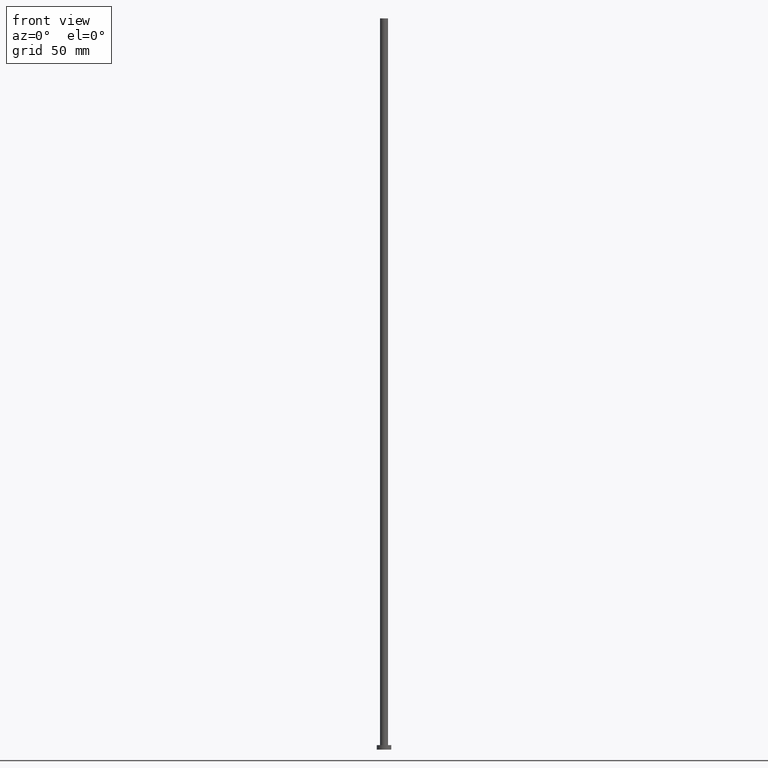
[diagram: clean part render]
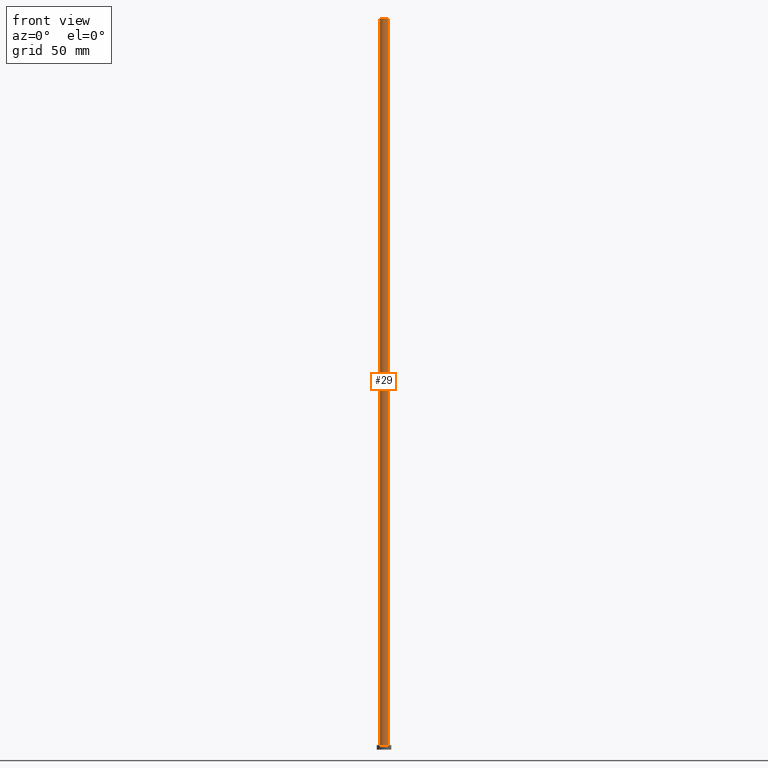
[diagram: same view with one face highlighted and labeled with its STEP entity id]
A machine part, front view. The second image highlights one B-rep face of the part: STEP entity #29.
In plain terms, the highlighted cylindrical surface (edge-blend (fillet) strip) has radius 2.75 mm, axis along (-0, -0, -1).
Its self-contained STEP definition (entity closure, byte-faithful):
#2 = DIRECTION ( 'NONE',  ( 1.000000000000000000, 0.000000000000000000, 0.000000000000000000 ) ) ;
#6 = CIRCLE ( 'NONE', #191, 2.750000000000000000 ) ;
#9 = ORIENTED_EDGE ( 'NONE', *, *, #138, .T. ) ;
#14 = VERTEX_POINT ( 'NONE', #114 ) ;
#17 = DIRECTION ( 'NONE',  ( -1.000000000000000000, 0.000000000000000000, 0.000000000000000000 ) ) ;
#24 = VECTOR ( 'NONE', #28, 1000.000000000000000 ) ;
#25 = CARTESIAN_POINT ( 'NONE',  ( -2.750000000000000000, 0.000000000000000000, 500.0000000000000000 ) ) ;
#28 = DIRECTION ( 'NONE',  ( -0.000000000000000000, -0.000000000000000000, -1.000000000000000000 ) ) ;
#29 = ADVANCED_FACE ( 'NONE', ( #248 ), #193, .T. ) ;
#33 = CARTESIAN_POINT ( 'NONE',  ( 2.750000000000000000, 3.367778697655220519E-16, 500.0000000000000000 ) ) ;
#35 = CARTESIAN_POINT ( 'NONE',  ( 2.750000000000000000, 3.367778697655220519E-16, 3.000000000000000000 ) ) ;
#42 = CARTESIAN_POINT ( 'NONE',  ( 0.000000000000000000, 0.000000000000000000, 3.000000000000000000 ) ) ;
#44 = EDGE_CURVE ( 'NONE', #209, #47, #215, .T. ) ;
#47 = VERTEX_POINT ( 'NONE', #35 ) ;
#49 = ORIENTED_EDGE ( 'NONE', *, *, #44, .F. ) ;
#50 = ORIENTED_EDGE ( 'NONE', *, *, #157, .F. ) ;
#67 = DIRECTION ( 'NONE',  ( 1.000000000000000000, 0.000000000000000000, 0.000000000000000000 ) ) ;
#79 = CIRCLE ( 'NONE', #99, 2.750000000000000000 ) ;
#86 = DIRECTION ( 'NONE',  ( 0.000000000000000000, 0.000000000000000000, 1.000000000000000000 ) ) ;
#97 = DIRECTION ( 'NONE',  ( -0.000000000000000000, -0.000000000000000000, -1.000000000000000000 ) ) ;
#99 = AXIS2_PLACEMENT_3D ( 'NONE', #119, #86, #67 ) ;
#114 = CARTESIAN_POINT ( 'NONE',  ( -2.750000000000000000, 0.000000000000000000, 500.0000000000000000 ) ) ;
#116 = CARTESIAN_POINT ( 'NONE',  ( 0.000000000000000000, 0.000000000000000000, 500.0000000000000000 ) ) ;
#119 = CARTESIAN_POINT ( 'NONE',  ( 0.000000000000000000, 0.000000000000000000, 500.0000000000000000 ) ) ;
#122 = VECTOR ( 'NONE', #216, 1000.000000000000000 ) ;
#123 = DIRECTION ( 'NONE',  ( 0.000000000000000000, 0.000000000000000000, 1.000000000000000000 ) ) ;
#138 = EDGE_CURVE ( 'NONE', #207, #47, #6, .T. ) ;
#145 = CARTESIAN_POINT ( 'NONE',  ( -2.750000000000000000, 0.000000000000000000, 3.000000000000000000 ) ) ;
#157 = EDGE_CURVE ( 'NONE', #14, #209, #79, .T. ) ;
#164 = LINE ( 'NONE', #25, #24 ) ;
#173 = EDGE_LOOP ( 'NONE', ( #49, #50, #194, #9 ) ) ;
#186 = EDGE_CURVE ( 'NONE', #14, #207, #164, .T. ) ;
#191 = AXIS2_PLACEMENT_3D ( 'NONE', #42, #123, #2 ) ;
#193 = CYLINDRICAL_SURFACE ( 'NONE', #244, 2.750000000000000000 ) ;
#194 = ORIENTED_EDGE ( 'NONE', *, *, #186, .T. ) ;
#207 = VERTEX_POINT ( 'NONE', #145 ) ;
#209 = VERTEX_POINT ( 'NONE', #239 ) ;
#215 = LINE ( 'NONE', #33, #122 ) ;
#216 = DIRECTION ( 'NONE',  ( -0.000000000000000000, -0.000000000000000000, -1.000000000000000000 ) ) ;
#239 = CARTESIAN_POINT ( 'NONE',  ( 2.750000000000000000, 3.367778697655220519E-16, 500.0000000000000000 ) ) ;
#244 = AXIS2_PLACEMENT_3D ( 'NONE', #116, #97, #17 ) ;
#248 = FACE_OUTER_BOUND ( 'NONE', #173, .T. ) ;